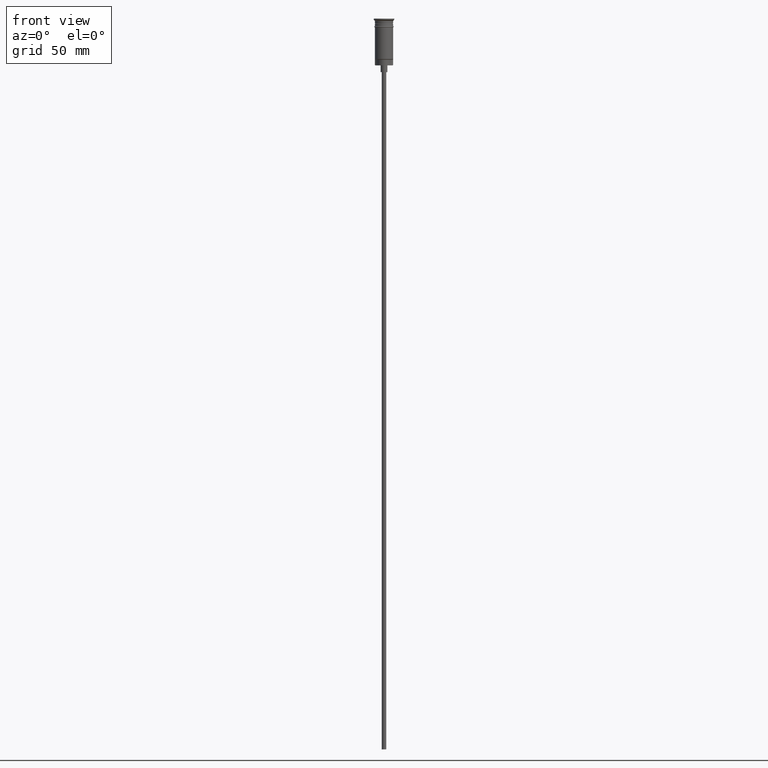
[diagram: clean part render]
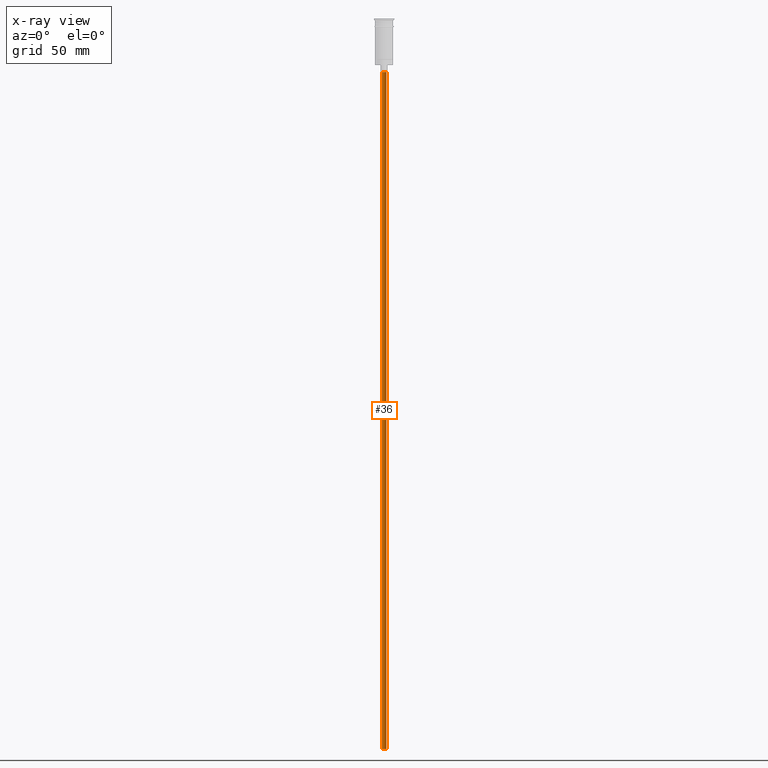
[diagram: x-ray — body ghosted, one internal face saturated and labeled with its STEP entity id]
A machine part, front view, then the same camera in x-ray: the body is ghosted and one INTERNAL B-rep face — a face not visible from any outside direction — is saturated and labeled: STEP entity #36.
In plain terms, the highlighted cylindrical surface (edge-blend (fillet) strip) has radius 1 mm, axis along (-0, -0, 1).
Its self-contained STEP definition (entity closure, byte-faithful):
#36 = ADVANCED_FACE ( 'NONE', ( #524 ), #1531, .T. ) ;
#62 = CARTESIAN_POINT ( 'NONE',  ( -0.9999999999999997780, 1.224646799147352961E-16, -320.5000000000000000 ) ) ;
#152 = LINE ( 'NONE', #1501, #733 ) ;
#275 = VERTEX_POINT ( 'NONE', #773 ) ;
#285 = DIRECTION ( 'NONE',  ( -0.000000000000000000, -0.000000000000000000, 1.000000000000000000 ) ) ;
#379 = EDGE_CURVE ( 'NONE', #1248, #275, #1082, .T. ) ;
#381 = AXIS2_PLACEMENT_3D ( 'NONE', #710, #1199, #590 ) ;
#400 = CARTESIAN_POINT ( 'NONE',  ( 0.9999999999999997780, 0.000000000000000000, -320.5000000000000000 ) ) ;
#418 = CARTESIAN_POINT ( 'NONE',  ( 0.000000000000000000, 0.000000000000000000, -320.5000000000000000 ) ) ;
#524 = FACE_OUTER_BOUND ( 'NONE', #869, .T. ) ;
#540 = CIRCLE ( 'NONE', #381, 0.9999999999999997780 ) ;
#566 = VERTEX_POINT ( 'NONE', #1415 ) ;
#590 = DIRECTION ( 'NONE',  ( -1.000000000000000000, 0.000000000000000000, 0.000000000000000000 ) ) ;
#594 = ORIENTED_EDGE ( 'NONE', *, *, #621, .F. ) ;
#621 = EDGE_CURVE ( 'NONE', #1578, #566, #152, .T. ) ;
#649 = DIRECTION ( 'NONE',  ( -0.000000000000000000, -0.000000000000000000, 1.000000000000000000 ) ) ;
#663 = DIRECTION ( 'NONE',  ( 0.000000000000000000, 0.000000000000000000, -1.000000000000000000 ) ) ;
#710 = CARTESIAN_POINT ( 'NONE',  ( 0.000000000000000000, 0.000000000000000000, -23.49999999999999645 ) ) ;
#733 = VECTOR ( 'NONE', #649, 1000.000000000000000 ) ;
#742 = AXIS2_PLACEMENT_3D ( 'NONE', #418, #285, #1172 ) ;
#747 = AXIS2_PLACEMENT_3D ( 'NONE', #1165, #663, #1544 ) ;
#767 = ORIENTED_EDGE ( 'NONE', *, *, #937, .T. ) ;
#773 = CARTESIAN_POINT ( 'NONE',  ( -0.9999999999999997780, 1.224646799147352961E-16, -23.49999999999999645 ) ) ;
#838 = ORIENTED_EDGE ( 'NONE', *, *, #379, .T. ) ;
#869 = EDGE_LOOP ( 'NONE', ( #919, #838, #767, #594 ) ) ;
#919 = ORIENTED_EDGE ( 'NONE', *, *, #1228, .F. ) ;
#937 = EDGE_CURVE ( 'NONE', #275, #566, #540, .T. ) ;
#1082 = LINE ( 'NONE', #62, #1164 ) ;
#1164 = VECTOR ( 'NONE', #1570, 1000.000000000000000 ) ;
#1165 = CARTESIAN_POINT ( 'NONE',  ( 0.000000000000000000, 0.000000000000000000, -320.5000000000000000 ) ) ;
#1172 = DIRECTION ( 'NONE',  ( 1.000000000000000000, 0.000000000000000000, 0.000000000000000000 ) ) ;
#1199 = DIRECTION ( 'NONE',  ( 0.000000000000000000, 0.000000000000000000, -1.000000000000000000 ) ) ;
#1228 = EDGE_CURVE ( 'NONE', #1248, #1578, #1391, .T. ) ;
#1248 = VERTEX_POINT ( 'NONE', #1326 ) ;
#1326 = CARTESIAN_POINT ( 'NONE',  ( -0.9999999999999997780, 1.224646799147352961E-16, -320.5000000000000000 ) ) ;
#1391 = CIRCLE ( 'NONE', #747, 0.9999999999999997780 ) ;
#1415 = CARTESIAN_POINT ( 'NONE',  ( 0.9999999999999997780, 0.000000000000000000, -23.49999999999999645 ) ) ;
#1501 = CARTESIAN_POINT ( 'NONE',  ( 0.9999999999999997780, 0.000000000000000000, -320.5000000000000000 ) ) ;
#1531 = CYLINDRICAL_SURFACE ( 'NONE', #742, 0.9999999999999997780 ) ;
#1544 = DIRECTION ( 'NONE',  ( -1.000000000000000000, 0.000000000000000000, 0.000000000000000000 ) ) ;
#1570 = DIRECTION ( 'NONE',  ( -0.000000000000000000, -0.000000000000000000, 1.000000000000000000 ) ) ;
#1578 = VERTEX_POINT ( 'NONE', #400 ) ;